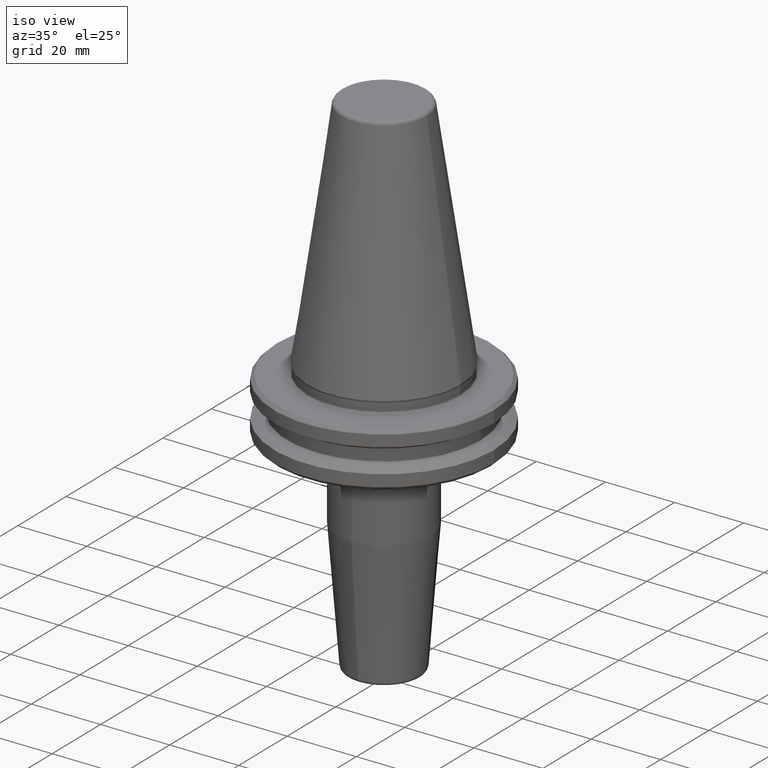
[diagram: clean part render]
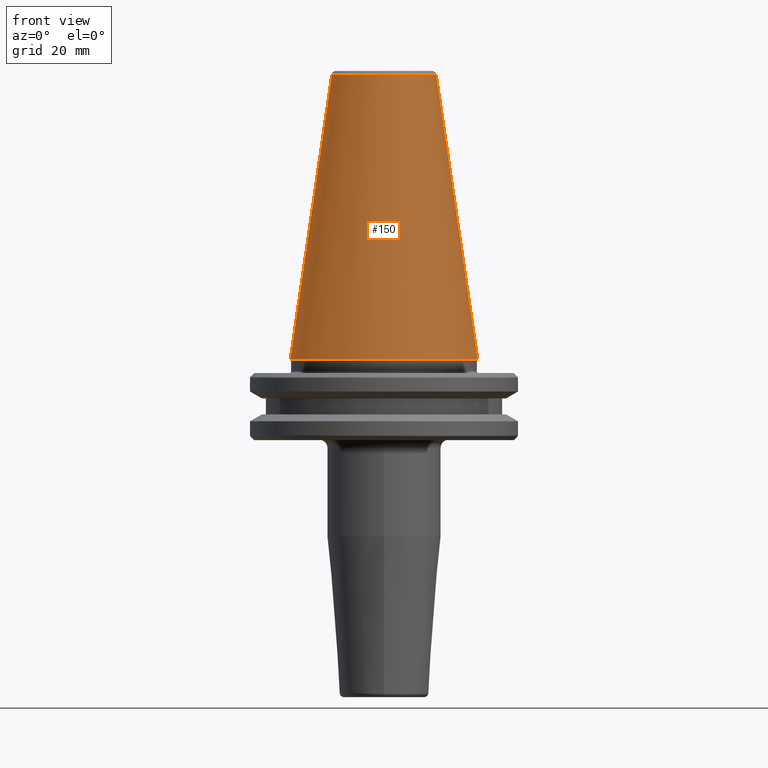
[diagram: tour spotlight — one face highlighted and labeled with its STEP entity id]
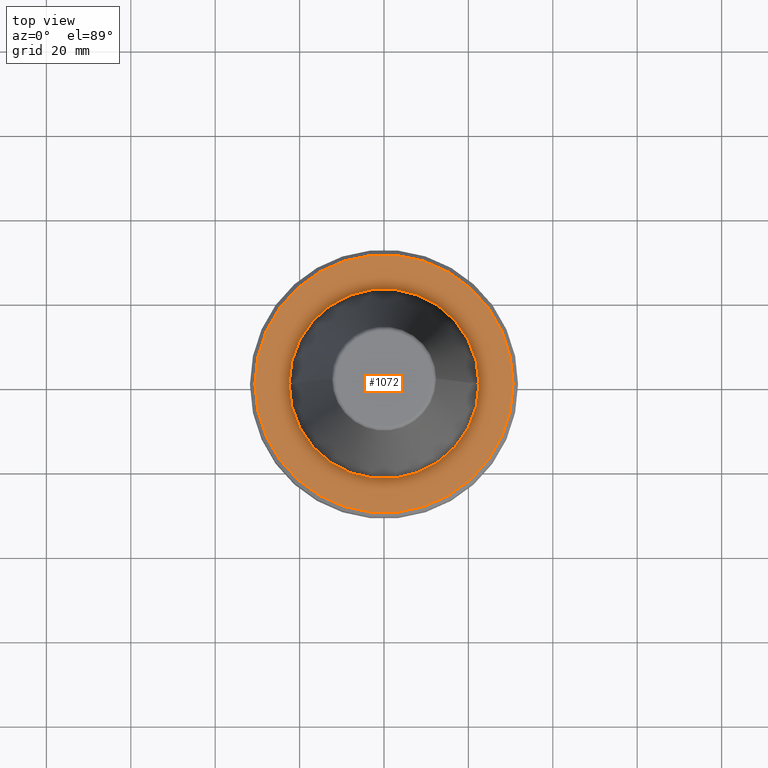
[diagram: tour spotlight — one face highlighted and labeled with its STEP entity id]
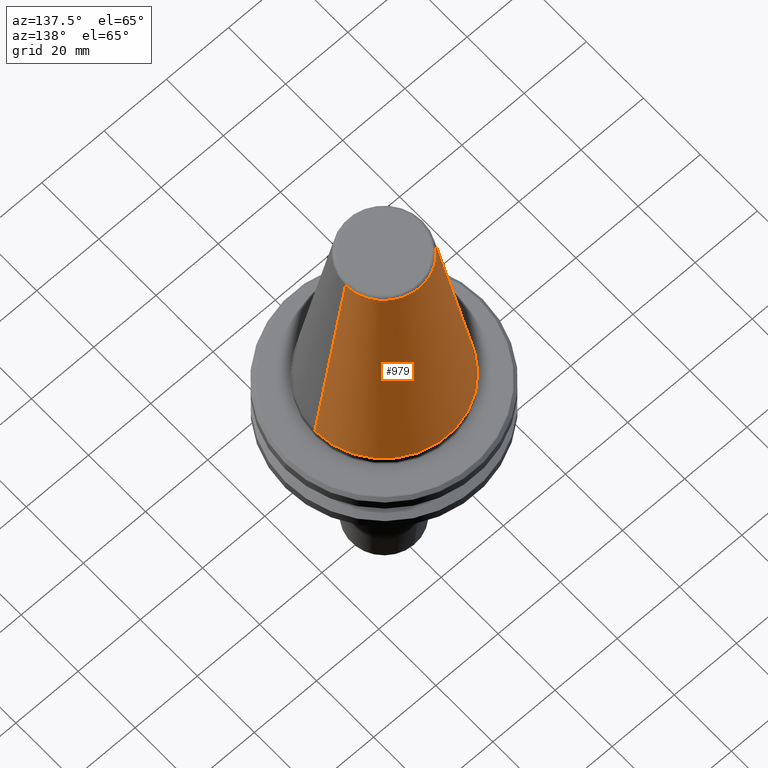
[diagram: tour spotlight — one face highlighted and labeled with its STEP entity id]
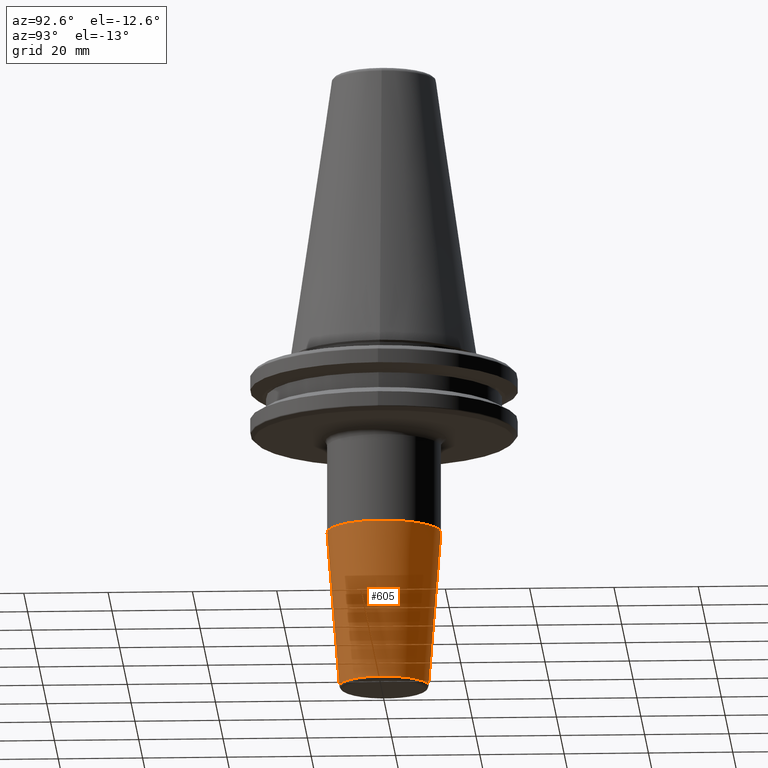
[diagram: tour spotlight — one face highlighted and labeled with its STEP entity id]
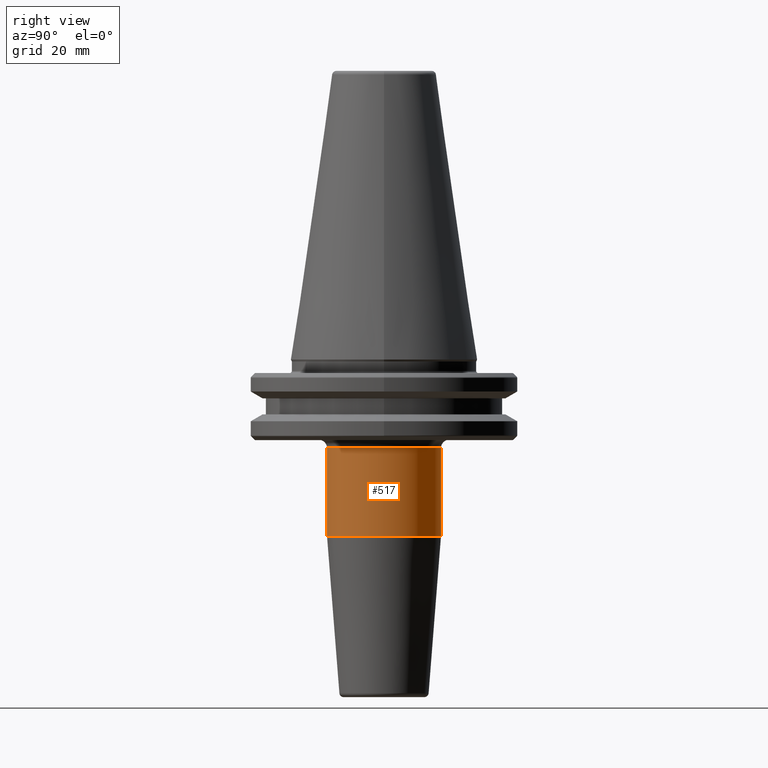
[diagram: tour spotlight — one face highlighted and labeled with its STEP entity id]
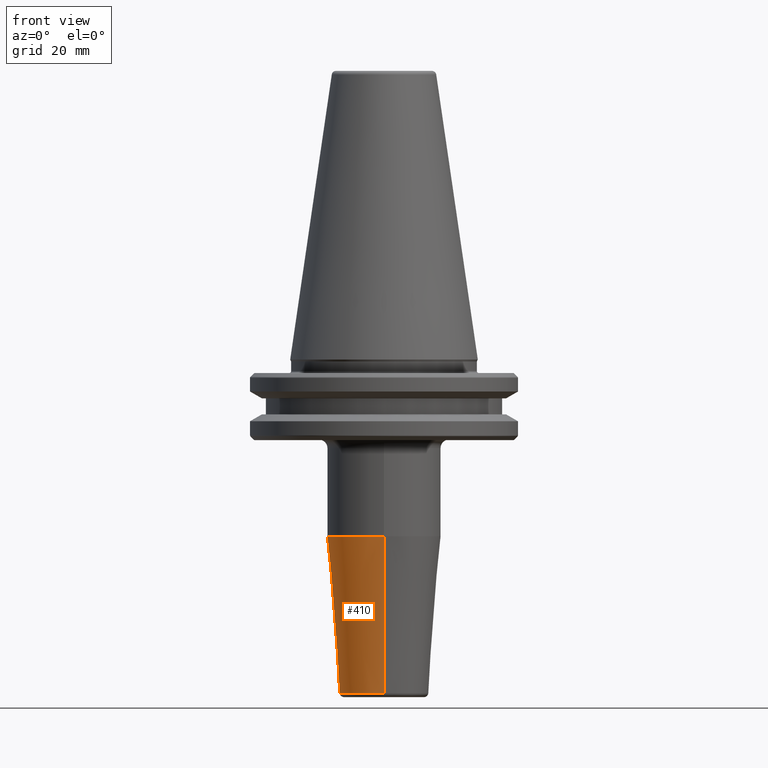
[diagram: tour spotlight — one face highlighted and labeled with its STEP entity id]
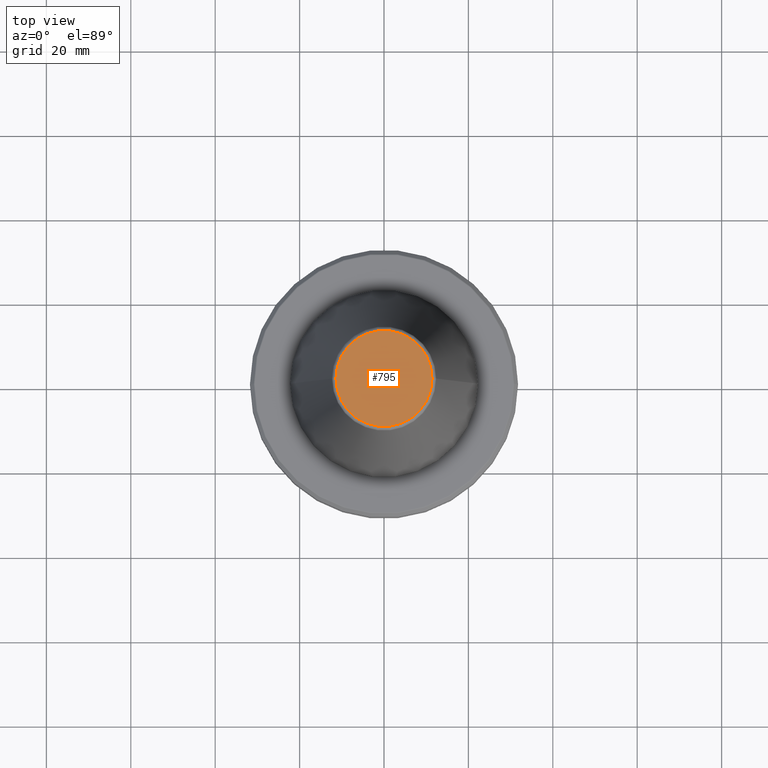
[diagram: tour spotlight — one face highlighted and labeled with its STEP entity id]
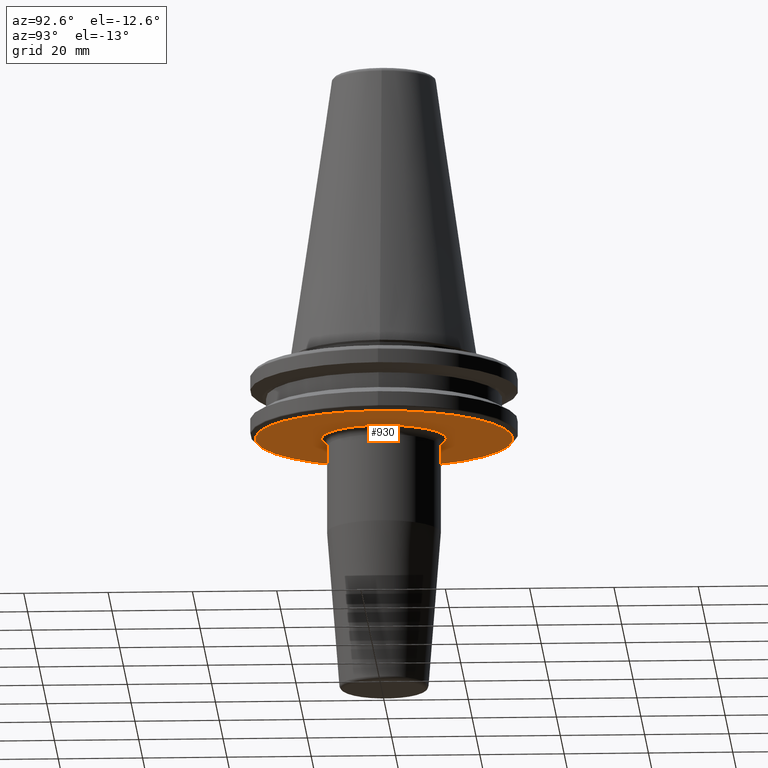
[diagram: tour spotlight — one face highlighted and labeled with its STEP entity id]
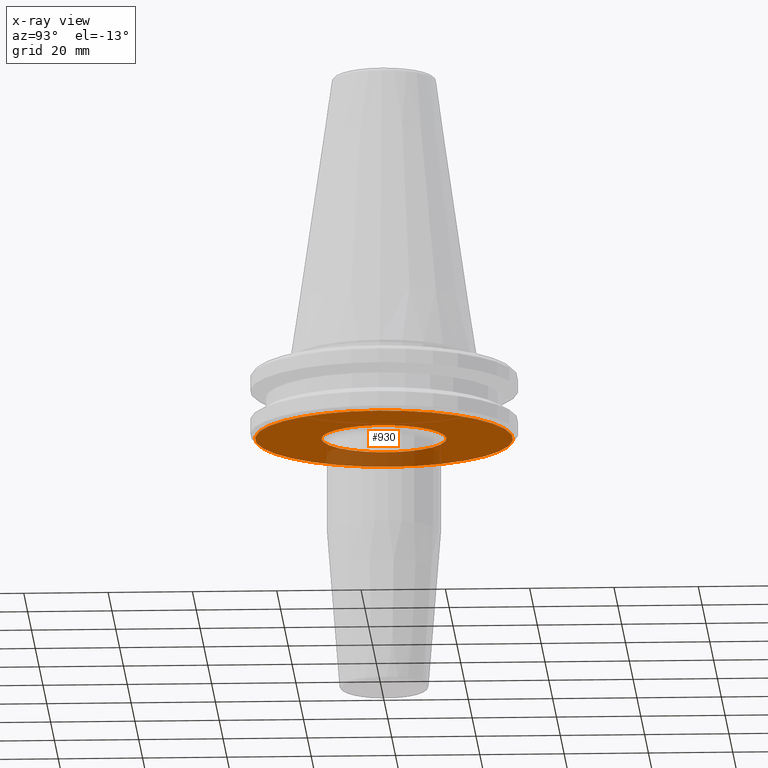
[diagram: x-ray of the same camera — body ghosted, this tour face saturated]
A machine part: a face-by-face anatomy tour. The part has 46 B-rep faces; the first image is the clean iso view, then the 8 largest visible faces are spotlighted one at a time (largest first), each with its STEP entity span.

Face 1 — front view, entity #150. In plain terms, the highlighted conical surface has half-angle 8.297 deg.
Definition (entity closure, byte-faithful):
#5 = DIRECTION ( 'NONE',  ( -0.0000000000000000000, -0.0000000000000000000, 1.000000000000000000 ) ) ;
#81 = AXIS2_PLACEMENT_3D ( 'NONE', #384, #875, #1241 ) ;
#87 = CARTESIAN_POINT ( 'NONE',  ( 12.37469537611110800, 1.515463108277802100E-015, 67.54430822726729400 ) ) ;
#141 = EDGE_CURVE ( 'NONE', #603, #1056, #298, .T. ) ;
#150 = ADVANCED_FACE ( 'NONE', ( #539 ), #750, .T. ) ;
#170 = CARTESIAN_POINT ( 'NONE',  ( -22.22500000000000500, 2.721777511104993200E-015, 0.0000000000000000000 ) ) ;
#220 = CARTESIAN_POINT ( 'NONE',  ( -12.37469537611110800, 0.0000000000000000000, 67.54430822726729400 ) ) ;
#249 = ORIENTED_EDGE ( 'NONE', *, *, #141, .F. ) ;
#268 = ORIENTED_EDGE ( 'NONE', *, *, #1227, .T. ) ;
#287 = AXIS2_PLACEMENT_3D ( 'NONE', #412, #1079, #523 ) ;
#288 = ORIENTED_EDGE ( 'NONE', *, *, #1121, .F. ) ;
#290 = DIRECTION ( 'NONE',  ( 0.1443082272673071000, 1.767266086135364600E-017, -0.9895327864921743500 ) ) ;
#298 = LINE ( 'NONE', #87, #326 ) ;
#326 = VECTOR ( 'NONE', #290, 1000.000000000000000 ) ;
#331 = AXIS2_PLACEMENT_3D ( 'NONE', #607, #5, #690 ) ;
#365 = ORIENTED_EDGE ( 'NONE', *, *, #1107, .T. ) ;
#384 = CARTESIAN_POINT ( 'NONE',  ( 0.0000000000000000000, 0.0000000000000000000, 67.54430822726729400 ) ) ;
#412 = CARTESIAN_POINT ( 'NONE',  ( 0.0000000000000000000, 0.0000000000000000000, 67.54430822726729400 ) ) ;
#503 = EDGE_LOOP ( 'NONE', ( #249, #288, #268, #365 ) ) ;
#523 = DIRECTION ( 'NONE',  ( 1.000000000000000000, 0.0000000000000000000, 0.0000000000000000000 ) ) ;
#539 = FACE_OUTER_BOUND ( 'NONE', #503, .T. ) ;
#596 = CIRCLE ( 'NONE', #331, 22.22500000000000500 ) ;
#603 = VERTEX_POINT ( 'NONE', #920 ) ;
#607 = CARTESIAN_POINT ( 'NONE',  ( 0.0000000000000000000, 0.0000000000000000000, 0.0000000000000000000 ) ) ;
#690 = DIRECTION ( 'NONE',  ( 1.000000000000000000, 0.0000000000000000000, 0.0000000000000000000 ) ) ;
#715 = VECTOR ( 'NONE', #923, 1000.000000000000000 ) ;
#734 = CARTESIAN_POINT ( 'NONE',  ( -12.37469537611110800, 0.0000000000000000000, 67.54430822726729400 ) ) ;
#750 = CONICAL_SURFACE ( 'NONE', #81, 12.37469537611110800, 0.1448138465474191100 ) ;
#805 = CIRCLE ( 'NONE', #287, 12.37469537611110800 ) ;
#852 = VERTEX_POINT ( 'NONE', #170 ) ;
#875 = DIRECTION ( 'NONE',  ( 0.0000000000000000000, 0.0000000000000000000, -1.000000000000000000 ) ) ;
#920 = CARTESIAN_POINT ( 'NONE',  ( 12.37469537611110800, 2.118620309691397700E-015, 67.54430822726729400 ) ) ;
#923 = DIRECTION ( 'NONE',  ( -0.1443082272673071000, 0.0000000000000000000, -0.9895327864921743500 ) ) ;
#968 = LINE ( 'NONE', #734, #715 ) ;
#1056 = VERTEX_POINT ( 'NONE', #1151 ) ;
#1079 = DIRECTION ( 'NONE',  ( -0.0000000000000000000, -0.0000000000000000000, 1.000000000000000000 ) ) ;
#1107 = EDGE_CURVE ( 'NONE', #852, #1056, #596, .T. ) ;
#1121 = EDGE_CURVE ( 'NONE', #1192, #603, #805, .T. ) ;
#1151 = CARTESIAN_POINT ( 'NONE',  ( 22.22500000000000500, 0.0000000000000000000, 0.0000000000000000000 ) ) ;
#1192 = VERTEX_POINT ( 'NONE', #220 ) ;
#1227 = EDGE_CURVE ( 'NONE', #1192, #852, #968, .T. ) ;
#1241 = DIRECTION ( 'NONE',  ( -1.000000000000000000, 0.0000000000000000000, 0.0000000000000000000 ) ) ;

Face 2 — top view, entity #1072. In plain terms, the highlighted planar face has unit normal (0, -0, 1).
Definition (entity closure, byte-faithful):
#3 = DIRECTION ( 'NONE',  ( -0.0000000000000000000, -0.0000000000000000000, 1.000000000000000000 ) ) ;
#23 = FACE_OUTER_BOUND ( 'NONE', #837, .T. ) ;
#47 = DIRECTION ( 'NONE',  ( -0.0000000000000000000, -0.0000000000000000000, 1.000000000000000000 ) ) ;
#52 = FACE_BOUND ( 'NONE', #1007, .T. ) ;
#96 = CARTESIAN_POINT ( 'NONE',  ( 0.0000000000000000000, 0.0000000000000000000, -3.200000000000000200 ) ) ;
#101 = CARTESIAN_POINT ( 'NONE',  ( -30.58431457505076200, 3.762817415969875600E-015, -3.199999999999994400 ) ) ;
#173 = CARTESIAN_POINT ( 'NONE',  ( 30.58431457505076200, 0.0000000000000000000, -3.199999999999994400 ) ) ;
#179 = CARTESIAN_POINT ( 'NONE',  ( 22.50000000000000000, 0.0000000000000000000, -3.199999999999996600 ) ) ;
#201 = CIRCLE ( 'NONE', #660, 30.58431457505076200 ) ;
#209 = DIRECTION ( 'NONE',  ( 1.000000000000000000, 0.0000000000000000000, 0.0000000000000000000 ) ) ;
#272 = VERTEX_POINT ( 'NONE', #173 ) ;
#364 = CIRCLE ( 'NONE', #675, 22.50000000000000000 ) ;
#369 = ORIENTED_EDGE ( 'NONE', *, *, #492, .T. ) ;
#371 = VERTEX_POINT ( 'NONE', #1196 ) ;
#379 = AXIS2_PLACEMENT_3D ( 'NONE', #96, #972, #399 ) ;
#393 = PLANE ( 'NONE',  #379 ) ;
#399 = DIRECTION ( 'NONE',  ( 1.000000000000000000, 0.0000000000000000000, 0.0000000000000000000 ) ) ;
#418 = DIRECTION ( 'NONE',  ( -0.0000000000000000000, -0.0000000000000000000, 1.000000000000000000 ) ) ;
#425 = EDGE_CURVE ( 'NONE', #272, #546, #555, .T. ) ;
#476 = CARTESIAN_POINT ( 'NONE',  ( 0.0000000000000000000, 0.0000000000000000000, -3.199999999999994400 ) ) ;
#492 = EDGE_CURVE ( 'NONE', #546, #272, #201, .T. ) ;
#498 = EDGE_CURVE ( 'NONE', #907, #371, #1193, .T. ) ;
#516 = DIRECTION ( 'NONE',  ( 1.000000000000000000, 0.0000000000000000000, 0.0000000000000000000 ) ) ;
#521 = ORIENTED_EDGE ( 'NONE', *, *, #721, .F. ) ;
#546 = VERTEX_POINT ( 'NONE', #101 ) ;
#547 = ORIENTED_EDGE ( 'NONE', *, *, #425, .T. ) ;
#555 = CIRCLE ( 'NONE', #1243, 30.58431457505076200 ) ;
#660 = AXIS2_PLACEMENT_3D ( 'NONE', #892, #418, #708 ) ;
#675 = AXIS2_PLACEMENT_3D ( 'NONE', #476, #3, #516 ) ;
#691 = CARTESIAN_POINT ( 'NONE',  ( 0.0000000000000000000, 0.0000000000000000000, -3.199999999999994400 ) ) ;
#708 = DIRECTION ( 'NONE',  ( 1.000000000000000000, 0.0000000000000000000, 0.0000000000000000000 ) ) ;
#721 = EDGE_CURVE ( 'NONE', #371, #907, #364, .T. ) ;
#732 = DIRECTION ( 'NONE',  ( 1.000000000000000000, 0.0000000000000000000, 0.0000000000000000000 ) ) ;
#794 = DIRECTION ( 'NONE',  ( -0.0000000000000000000, -0.0000000000000000000, 1.000000000000000000 ) ) ;
#837 = EDGE_LOOP ( 'NONE', ( #547, #369 ) ) ;
#892 = CARTESIAN_POINT ( 'NONE',  ( 0.0000000000000000000, 0.0000000000000000000, -3.199999999999994400 ) ) ;
#907 = VERTEX_POINT ( 'NONE', #179 ) ;
#947 = AXIS2_PLACEMENT_3D ( 'NONE', #691, #794, #209 ) ;
#972 = DIRECTION ( 'NONE',  ( 0.0000000000000000000, -0.0000000000000000000, 1.000000000000000000 ) ) ;
#1007 = EDGE_LOOP ( 'NONE', ( #1123, #521 ) ) ;
#1072 = ADVANCED_FACE ( 'NONE', ( #23, #52 ), #393, .T. ) ;
#1123 = ORIENTED_EDGE ( 'NONE', *, *, #498, .F. ) ;
#1193 = CIRCLE ( 'NONE', #947, 22.50000000000000000 ) ;
#1196 = CARTESIAN_POINT ( 'NONE',  ( -22.50000000000000000, 2.755455298081544800E-015, -3.199999999999996600 ) ) ;
#1199 = CARTESIAN_POINT ( 'NONE',  ( 0.0000000000000000000, 0.0000000000000000000, -3.199999999999994400 ) ) ;
#1243 = AXIS2_PLACEMENT_3D ( 'NONE', #1199, #47, #732 ) ;

Face 3 — auxiliary view, entity #979. In plain terms, the highlighted conical surface has half-angle 8.297 deg.
Definition (entity closure, byte-faithful):
#16 = DIRECTION ( 'NONE',  ( 1.000000000000000000, 0.0000000000000000000, 0.0000000000000000000 ) ) ;
#87 = CARTESIAN_POINT ( 'NONE',  ( 12.37469537611110800, 1.515463108277802100E-015, 67.54430822726729400 ) ) ;
#118 = FACE_OUTER_BOUND ( 'NONE', #1099, .T. ) ;
#141 = EDGE_CURVE ( 'NONE', #603, #1056, #298, .T. ) ;
#170 = CARTESIAN_POINT ( 'NONE',  ( -22.22500000000000500, 2.721777511104993200E-015, 0.0000000000000000000 ) ) ;
#220 = CARTESIAN_POINT ( 'NONE',  ( -12.37469537611110800, 0.0000000000000000000, 67.54430822726729400 ) ) ;
#239 = AXIS2_PLACEMENT_3D ( 'NONE', #1234, #939, #1046 ) ;
#252 = EDGE_CURVE ( 'NONE', #1056, #852, #1228, .T. ) ;
#290 = DIRECTION ( 'NONE',  ( 0.1443082272673071000, 1.767266086135364600E-017, -0.9895327864921743500 ) ) ;
#298 = LINE ( 'NONE', #87, #326 ) ;
#314 = EDGE_CURVE ( 'NONE', #603, #1192, #1173, .T. ) ;
#326 = VECTOR ( 'NONE', #290, 1000.000000000000000 ) ;
#389 = ORIENTED_EDGE ( 'NONE', *, *, #252, .T. ) ;
#414 = DIRECTION ( 'NONE',  ( -0.0000000000000000000, -0.0000000000000000000, 1.000000000000000000 ) ) ;
#590 = CONICAL_SURFACE ( 'NONE', #701, 12.37469537611110800, 0.1448138465474191100 ) ;
#603 = VERTEX_POINT ( 'NONE', #920 ) ;
#651 = ORIENTED_EDGE ( 'NONE', *, *, #141, .T. ) ;
#701 = AXIS2_PLACEMENT_3D ( 'NONE', #767, #962, #1240 ) ;
#715 = VECTOR ( 'NONE', #923, 1000.000000000000000 ) ;
#734 = CARTESIAN_POINT ( 'NONE',  ( -12.37469537611110800, 0.0000000000000000000, 67.54430822726729400 ) ) ;
#767 = CARTESIAN_POINT ( 'NONE',  ( 0.0000000000000000000, 0.0000000000000000000, 67.54430822726729400 ) ) ;
#789 = AXIS2_PLACEMENT_3D ( 'NONE', #888, #414, #16 ) ;
#852 = VERTEX_POINT ( 'NONE', #170 ) ;
#888 = CARTESIAN_POINT ( 'NONE',  ( 0.0000000000000000000, 0.0000000000000000000, 67.54430822726729400 ) ) ;
#920 = CARTESIAN_POINT ( 'NONE',  ( 12.37469537611110800, 2.118620309691397700E-015, 67.54430822726729400 ) ) ;
#923 = DIRECTION ( 'NONE',  ( -0.1443082272673071000, 0.0000000000000000000, -0.9895327864921743500 ) ) ;
#939 = DIRECTION ( 'NONE',  ( -0.0000000000000000000, -0.0000000000000000000, 1.000000000000000000 ) ) ;
#962 = DIRECTION ( 'NONE',  ( 0.0000000000000000000, 0.0000000000000000000, -1.000000000000000000 ) ) ;
#968 = LINE ( 'NONE', #734, #715 ) ;
#979 = ADVANCED_FACE ( 'NONE', ( #118 ), #590, .T. ) ;
#1046 = DIRECTION ( 'NONE',  ( 1.000000000000000000, 0.0000000000000000000, 0.0000000000000000000 ) ) ;
#1056 = VERTEX_POINT ( 'NONE', #1151 ) ;
#1099 = EDGE_LOOP ( 'NONE', ( #1162, #651, #389, #1232 ) ) ;
#1151 = CARTESIAN_POINT ( 'NONE',  ( 22.22500000000000500, 0.0000000000000000000, 0.0000000000000000000 ) ) ;
#1162 = ORIENTED_EDGE ( 'NONE', *, *, #314, .F. ) ;
#1173 = CIRCLE ( 'NONE', #789, 12.37469537611110800 ) ;
#1192 = VERTEX_POINT ( 'NONE', #220 ) ;
#1227 = EDGE_CURVE ( 'NONE', #1192, #852, #968, .T. ) ;
#1228 = CIRCLE ( 'NONE', #239, 22.22500000000000500 ) ;
#1232 = ORIENTED_EDGE ( 'NONE', *, *, #1227, .F. ) ;
#1234 = CARTESIAN_POINT ( 'NONE',  ( 0.0000000000000000000, 0.0000000000000000000, 0.0000000000000000000 ) ) ;
#1240 = DIRECTION ( 'NONE',  ( -1.000000000000000000, 0.0000000000000000000, 0.0000000000000000000 ) ) ;

Face 4 — auxiliary view, entity #605. In plain terms, the highlighted conical surface has half-angle 4.5 deg.
Definition (entity closure, byte-faithful):
#12 = DIRECTION ( 'NONE',  ( 0.0000000000000000000, -0.07845909572784545700, 0.9969173337331278500 ) ) ;
#31 = AXIS2_PLACEMENT_3D ( 'NONE', #461, #1018, #550 ) ;
#76 = EDGE_LOOP ( 'NONE', ( #973, #382, #1181, #1198 ) ) ;
#99 = VERTEX_POINT ( 'NONE', #522 ) ;
#112 = CARTESIAN_POINT ( 'NONE',  ( 0.0000000000000000000, -10.57252684207495400, -79.07845909572785100 ) ) ;
#142 = VECTOR ( 'NONE', #12, 1000.000000000000100 ) ;
#222 = CARTESIAN_POINT ( 'NONE',  ( 0.0000000000000000000, -2.675592333722435000E-016, -79.07845909572785100 ) ) ;
#246 = VECTOR ( 'NONE', #1128, 1000.000000000000000 ) ;
#277 = EDGE_CURVE ( 'NONE', #445, #791, #1130, .T. ) ;
#296 = EDGE_CURVE ( 'NONE', #445, #99, #722, .T. ) ;
#340 = EDGE_CURVE ( 'NONE', #99, #515, #662, .T. ) ;
#382 = ORIENTED_EDGE ( 'NONE', *, *, #277, .T. ) ;
#386 = EDGE_CURVE ( 'NONE', #791, #515, #415, .T. ) ;
#415 = CIRCLE ( 'NONE', #1093, 13.50000000000003400 ) ;
#445 = VERTEX_POINT ( 'NONE', #462 ) ;
#461 = CARTESIAN_POINT ( 'NONE',  ( 0.0000000000000000000, -2.675592333722435000E-016, -79.07845909572785100 ) ) ;
#462 = CARTESIAN_POINT ( 'NONE',  ( 0.0000000000000000000, 10.57252684207495400, -79.07845909572785100 ) ) ;
#515 = VERTEX_POINT ( 'NONE', #993 ) ;
#522 = CARTESIAN_POINT ( 'NONE',  ( 1.294761115604656700E-015, -10.57252684207495400, -79.07845909572785100 ) ) ;
#550 = DIRECTION ( 'NONE',  ( 0.0000000000000000000, -1.000000000000000000, 0.0000000000000000000 ) ) ;
#605 = ADVANCED_FACE ( 'NONE', ( #847 ), #818, .T. ) ;
#631 = DIRECTION ( 'NONE',  ( 0.0000000000000000000, 1.000000000000000000, 5.139921410301638000E-016 ) ) ;
#662 = LINE ( 'NONE', #112, #142 ) ;
#722 = CIRCLE ( 'NONE', #884, 10.57252684207495400 ) ;
#791 = VERTEX_POINT ( 'NONE', #1019 ) ;
#818 = CONICAL_SURFACE ( 'NONE', #31, 10.57252684207495400, 0.07853981633974507800 ) ;
#839 = CARTESIAN_POINT ( 'NONE',  ( 1.294761115604656500E-015, 10.57252684207495400, -79.07845909572785100 ) ) ;
#847 = FACE_OUTER_BOUND ( 'NONE', #76, .T. ) ;
#884 = AXIS2_PLACEMENT_3D ( 'NONE', #222, #1088, #1179 ) ;
#973 = ORIENTED_EDGE ( 'NONE', *, *, #296, .F. ) ;
#993 = CARTESIAN_POINT ( 'NONE',  ( 0.0000000000000000000, -13.50000000000004400, -41.88138579147598500 ) ) ;
#1018 = DIRECTION ( 'NONE',  ( 0.0000000000000000000, -2.829168385244881300E-016, 1.000000000000000000 ) ) ;
#1019 = CARTESIAN_POINT ( 'NONE',  ( 1.653273178848931000E-015, 13.50000000000002500, -41.88138579147598500 ) ) ;
#1088 = DIRECTION ( 'NONE',  ( -0.0000000000000000000, 2.829168385244881300E-016, -1.000000000000000000 ) ) ;
#1093 = AXIS2_PLACEMENT_3D ( 'NONE', #1201, #1106, #631 ) ;
#1106 = DIRECTION ( 'NONE',  ( -0.0000000000000000000, 2.829168385244881300E-016, -1.000000000000000000 ) ) ;
#1128 = DIRECTION ( 'NONE',  ( 9.608468044710139700E-018, 0.07845909572784491600, 0.9969173337331279600 ) ) ;
#1130 = LINE ( 'NONE', #839, #246 ) ;
#1179 = DIRECTION ( 'NONE',  ( 0.0000000000000000000, 1.000000000000000000, 0.0000000000000000000 ) ) ;
#1181 = ORIENTED_EDGE ( 'NONE', *, *, #386, .T. ) ;
#1198 = ORIENTED_EDGE ( 'NONE', *, *, #340, .F. ) ;
#1201 = CARTESIAN_POINT ( 'NONE',  ( 0.0000000000000000000, -1.079123761497481700E-014, -41.88138579147598500 ) ) ;

Face 5 — right view, entity #517. In plain terms, the highlighted cylindrical surface (partial cylindrical patch) has radius 13.5 mm, axis along (-0, 0, -1).
Definition (entity closure, byte-faithful):
#17 = DIRECTION ( 'NONE',  ( 0.0000000000000000000, 1.000000000000000000, 0.0000000000000000000 ) ) ;
#22 = CIRCLE ( 'NONE', #1221, 13.50000000000001800 ) ;
#51 = VECTOR ( 'NONE', #255, 1000.000000000000000 ) ;
#245 = ORIENTED_EDGE ( 'NONE', *, *, #376, .F. ) ;
#255 = DIRECTION ( 'NONE',  ( -0.0000000000000000000, 2.829168385244881300E-016, -1.000000000000000000 ) ) ;
#316 = EDGE_LOOP ( 'NONE', ( #435, #1010, #743, #245 ) ) ;
#321 = VERTEX_POINT ( 'NONE', #428 ) ;
#376 = EDGE_CURVE ( 'NONE', #321, #791, #853, .T. ) ;
#386 = EDGE_CURVE ( 'NONE', #791, #515, #415, .T. ) ;
#415 = CIRCLE ( 'NONE', #1093, 13.50000000000003400 ) ;
#417 = EDGE_CURVE ( 'NONE', #625, #515, #449, .T. ) ;
#428 = CARTESIAN_POINT ( 'NONE',  ( 0.0000000000000000000, 13.50000000000000000, -20.98284271247461100 ) ) ;
#435 = ORIENTED_EDGE ( 'NONE', *, *, #440, .T. ) ;
#440 = EDGE_CURVE ( 'NONE', #321, #625, #22, .T. ) ;
#449 = LINE ( 'NONE', #917, #51 ) ;
#510 = AXIS2_PLACEMENT_3D ( 'NONE', #688, #518, #17 ) ;
#515 = VERTEX_POINT ( 'NONE', #993 ) ;
#517 = ADVANCED_FACE ( 'NONE', ( #1164 ), #655, .T. ) ;
#518 = DIRECTION ( 'NONE',  ( -0.0000000000000000000, 2.829168385244881300E-016, -1.000000000000000000 ) ) ;
#552 = CARTESIAN_POINT ( 'NONE',  ( 0.0000000000000000000, -1.670378735265370500E-014, -20.98284271247461400 ) ) ;
#616 = VECTOR ( 'NONE', #720, 1000.000000000000000 ) ;
#625 = VERTEX_POINT ( 'NONE', #738 ) ;
#631 = DIRECTION ( 'NONE',  ( 0.0000000000000000000, 1.000000000000000000, 5.139921410301638000E-016 ) ) ;
#645 = DIRECTION ( 'NONE',  ( 0.0000000000000000000, 1.000000000000000000, 2.569960705150821900E-016 ) ) ;
#655 = CYLINDRICAL_SURFACE ( 'NONE', #510, 13.50000000000002700 ) ;
#688 = CARTESIAN_POINT ( 'NONE',  ( 0.0000000000000000000, -6.839794164568140200E-018, -80.00000000000000000 ) ) ;
#720 = DIRECTION ( 'NONE',  ( -0.0000000000000000000, 2.829168385244881300E-016, -1.000000000000000000 ) ) ;
#727 = CARTESIAN_POINT ( 'NONE',  ( 0.0000000000000000000, 13.50000000000002700, -80.00000000000000000 ) ) ;
#738 = CARTESIAN_POINT ( 'NONE',  ( 1.653273178848929600E-015, -13.50000000000003400, -20.98284271247461800 ) ) ;
#743 = ORIENTED_EDGE ( 'NONE', *, *, #386, .F. ) ;
#791 = VERTEX_POINT ( 'NONE', #1019 ) ;
#853 = LINE ( 'NONE', #727, #616 ) ;
#917 = CARTESIAN_POINT ( 'NONE',  ( 1.653273178848929800E-015, -13.50000000000002700, -80.00000000000000000 ) ) ;
#993 = CARTESIAN_POINT ( 'NONE',  ( 0.0000000000000000000, -13.50000000000004400, -41.88138579147598500 ) ) ;
#1010 = ORIENTED_EDGE ( 'NONE', *, *, #417, .T. ) ;
#1019 = CARTESIAN_POINT ( 'NONE',  ( 1.653273178848931000E-015, 13.50000000000002500, -41.88138579147598500 ) ) ;
#1020 = DIRECTION ( 'NONE',  ( -0.0000000000000000000, 2.829168385244881300E-016, -1.000000000000000000 ) ) ;
#1093 = AXIS2_PLACEMENT_3D ( 'NONE', #1201, #1106, #631 ) ;
#1106 = DIRECTION ( 'NONE',  ( -0.0000000000000000000, 2.829168385244881300E-016, -1.000000000000000000 ) ) ;
#1164 = FACE_OUTER_BOUND ( 'NONE', #316, .T. ) ;
#1201 = CARTESIAN_POINT ( 'NONE',  ( 0.0000000000000000000, -1.079123761497481700E-014, -41.88138579147598500 ) ) ;
#1221 = AXIS2_PLACEMENT_3D ( 'NONE', #552, #1020, #645 ) ;

Face 6 — front view, entity #410. In plain terms, the highlighted conical surface has half-angle 4.5 deg.
Definition (entity closure, byte-faithful):
#12 = DIRECTION ( 'NONE',  ( 0.0000000000000000000, -0.07845909572784545700, 0.9969173337331278500 ) ) ;
#34 = DIRECTION ( 'NONE',  ( 0.0000000000000000000, -1.000000000000000000, 0.0000000000000000000 ) ) ;
#79 = DIRECTION ( 'NONE',  ( -0.0000000000000000000, 2.829168385244881300E-016, -1.000000000000000000 ) ) ;
#99 = VERTEX_POINT ( 'NONE', #522 ) ;
#112 = CARTESIAN_POINT ( 'NONE',  ( 0.0000000000000000000, -10.57252684207495400, -79.07845909572785100 ) ) ;
#142 = VECTOR ( 'NONE', #12, 1000.000000000000100 ) ;
#157 = ORIENTED_EDGE ( 'NONE', *, *, #340, .T. ) ;
#172 = CARTESIAN_POINT ( 'NONE',  ( 0.0000000000000000000, -2.675592333722435000E-016, -79.07845909572785100 ) ) ;
#219 = EDGE_CURVE ( 'NONE', #515, #791, #477, .T. ) ;
#246 = VECTOR ( 'NONE', #1128, 1000.000000000000000 ) ;
#277 = EDGE_CURVE ( 'NONE', #445, #791, #1130, .T. ) ;
#340 = EDGE_CURVE ( 'NONE', #99, #515, #662, .T. ) ;
#359 = CARTESIAN_POINT ( 'NONE',  ( 0.0000000000000000000, -1.079123761497481700E-014, -41.88138579147598500 ) ) ;
#368 = DIRECTION ( 'NONE',  ( 0.0000000000000000000, 1.000000000000000000, 0.0000000000000000000 ) ) ;
#370 = DIRECTION ( 'NONE',  ( 0.0000000000000000000, 1.000000000000000000, 5.139921410301638000E-016 ) ) ;
#410 = ADVANCED_FACE ( 'NONE', ( #1085 ), #799, .T. ) ;
#445 = VERTEX_POINT ( 'NONE', #462 ) ;
#462 = CARTESIAN_POINT ( 'NONE',  ( 0.0000000000000000000, 10.57252684207495400, -79.07845909572785100 ) ) ;
#477 = CIRCLE ( 'NONE', #618, 13.50000000000003400 ) ;
#515 = VERTEX_POINT ( 'NONE', #993 ) ;
#522 = CARTESIAN_POINT ( 'NONE',  ( 1.294761115604656700E-015, -10.57252684207495400, -79.07845909572785100 ) ) ;
#541 = CARTESIAN_POINT ( 'NONE',  ( 0.0000000000000000000, -2.675592333722435000E-016, -79.07845909572785100 ) ) ;
#543 = ORIENTED_EDGE ( 'NONE', *, *, #219, .T. ) ;
#618 = AXIS2_PLACEMENT_3D ( 'NONE', #359, #79, #370 ) ;
#656 = DIRECTION ( 'NONE',  ( -0.0000000000000000000, 2.829168385244881300E-016, -1.000000000000000000 ) ) ;
#662 = LINE ( 'NONE', #112, #142 ) ;
#664 = ORIENTED_EDGE ( 'NONE', *, *, #277, .F. ) ;
#710 = AXIS2_PLACEMENT_3D ( 'NONE', #172, #656, #368 ) ;
#712 = ORIENTED_EDGE ( 'NONE', *, *, #717, .F. ) ;
#717 = EDGE_CURVE ( 'NONE', #99, #445, #1097, .T. ) ;
#791 = VERTEX_POINT ( 'NONE', #1019 ) ;
#799 = CONICAL_SURFACE ( 'NONE', #1091, 10.57252684207495400, 0.07853981633974507800 ) ;
#802 = EDGE_LOOP ( 'NONE', ( #664, #712, #157, #543 ) ) ;
#839 = CARTESIAN_POINT ( 'NONE',  ( 1.294761115604656500E-015, 10.57252684207495400, -79.07845909572785100 ) ) ;
#913 = DIRECTION ( 'NONE',  ( 0.0000000000000000000, -2.829168385244881300E-016, 1.000000000000000000 ) ) ;
#993 = CARTESIAN_POINT ( 'NONE',  ( 0.0000000000000000000, -13.50000000000004400, -41.88138579147598500 ) ) ;
#1019 = CARTESIAN_POINT ( 'NONE',  ( 1.653273178848931000E-015, 13.50000000000002500, -41.88138579147598500 ) ) ;
#1085 = FACE_OUTER_BOUND ( 'NONE', #802, .T. ) ;
#1091 = AXIS2_PLACEMENT_3D ( 'NONE', #541, #913, #34 ) ;
#1097 = CIRCLE ( 'NONE', #710, 10.57252684207495400 ) ;
#1128 = DIRECTION ( 'NONE',  ( 9.608468044710139700E-018, 0.07845909572784491600, 0.9969173337331279600 ) ) ;
#1130 = LINE ( 'NONE', #839, #246 ) ;

Face 7 — top view, entity #795. In plain terms, the highlighted planar face has unit normal (0, -0, 1).
Definition (entity closure, byte-faithful):
#2 = FACE_OUTER_BOUND ( 'NONE', #1187, .T. ) ;
#72 = CARTESIAN_POINT ( 'NONE',  ( 0.0000000000000000000, 0.0000000000000000000, 68.40000000000000600 ) ) ;
#115 = DIRECTION ( 'NONE',  ( 1.000000000000000000, 0.0000000000000000000, 0.0000000000000000000 ) ) ;
#121 = DIRECTION ( 'NONE',  ( -0.0000000000000000000, -0.0000000000000000000, 1.000000000000000000 ) ) ;
#166 = VERTEX_POINT ( 'NONE', #294 ) ;
#242 = CIRCLE ( 'NONE', #433, 11.38516258961893100 ) ;
#294 = CARTESIAN_POINT ( 'NONE',  ( 11.38516258961893100, 0.0000000000000000000, 68.40000000000000600 ) ) ;
#360 = PLANE ( 'NONE',  #409 ) ;
#409 = AXIS2_PLACEMENT_3D ( 'NONE', #1032, #470, #1124 ) ;
#433 = AXIS2_PLACEMENT_3D ( 'NONE', #987, #121, #115 ) ;
#470 = DIRECTION ( 'NONE',  ( 0.0000000000000000000, -0.0000000000000000000, 1.000000000000000000 ) ) ;
#537 = EDGE_CURVE ( 'NONE', #1246, #166, #242, .T. ) ;
#627 = CIRCLE ( 'NONE', #725, 11.38516258961893100 ) ;
#632 = ORIENTED_EDGE ( 'NONE', *, *, #537, .T. ) ;
#707 = EDGE_CURVE ( 'NONE', #166, #1246, #627, .T. ) ;
#725 = AXIS2_PLACEMENT_3D ( 'NONE', #72, #1131, #1040 ) ;
#792 = ORIENTED_EDGE ( 'NONE', *, *, #707, .T. ) ;
#795 = ADVANCED_FACE ( 'NONE', ( #2 ), #360, .T. ) ;
#987 = CARTESIAN_POINT ( 'NONE',  ( 0.0000000000000000000, 0.0000000000000000000, 68.40000000000000600 ) ) ;
#1032 = CARTESIAN_POINT ( 'NONE',  ( 0.0000000000000000000, -8.337524199435086500E-014, 68.39999999999999100 ) ) ;
#1040 = DIRECTION ( 'NONE',  ( 1.000000000000000000, 0.0000000000000000000, 0.0000000000000000000 ) ) ;
#1124 = DIRECTION ( 'NONE',  ( 1.000000000000000000, 0.0000000000000000000, 0.0000000000000000000 ) ) ;
#1131 = DIRECTION ( 'NONE',  ( -0.0000000000000000000, -0.0000000000000000000, 1.000000000000000000 ) ) ;
#1187 = EDGE_LOOP ( 'NONE', ( #792, #632 ) ) ;
#1213 = CARTESIAN_POINT ( 'NONE',  ( -11.38516258961893100, 1.454871700296352000E-015, 68.40000000000000600 ) ) ;
#1246 = VERTEX_POINT ( 'NONE', #1213 ) ;

Face 8 — auxiliary view, entity #930. An x-ray twin of the same camera follows (body ghosted, this face saturated) — the face is partly hidden behind the body. In plain terms, the highlighted planar face has unit normal (0, 0, -1).
Definition (entity closure, byte-faithful):
#25 = DIRECTION ( 'NONE',  ( 0.0000000000000000000, 0.0000000000000000000, -1.000000000000000000 ) ) ;
#84 = PLANE ( 'NONE',  #986 ) ;
#131 = ORIENTED_EDGE ( 'NONE', *, *, #519, .F. ) ;
#155 = ORIENTED_EDGE ( 'NONE', *, *, #358, .F. ) ;
#165 = CARTESIAN_POINT ( 'NONE',  ( 1.815604372569386400E-015, -14.82553478956939400, -19.10000000000000500 ) ) ;
#183 = CARTESIAN_POINT ( 'NONE',  ( 0.0000000000000000000, 2.166680460328873200E-015, -19.10000000000000500 ) ) ;
#226 = CARTESIAN_POINT ( 'NONE',  ( 0.0000000000000000000, 14.82553478956935000, -19.10000000000000500 ) ) ;
#254 = VERTEX_POINT ( 'NONE', #165 ) ;
#285 = EDGE_CURVE ( 'NONE', #1027, #1157, #1230, .T. ) ;
#309 = VERTEX_POINT ( 'NONE', #226 ) ;
#317 = DIRECTION ( 'NONE',  ( 1.000000000000000000, 0.0000000000000000000, 0.0000000000000000000 ) ) ;
#324 = DIRECTION ( 'NONE',  ( 1.000000000000000000, 0.0000000000000000000, 0.0000000000000000000 ) ) ;
#358 = EDGE_CURVE ( 'NONE', #1157, #1027, #639, .T. ) ;
#381 = FACE_BOUND ( 'NONE', #615, .T. ) ;
#436 = CARTESIAN_POINT ( 'NONE',  ( 0.0000000000000000000, -1.734723475976807100E-014, -19.10000000000000500 ) ) ;
#447 = DIRECTION ( 'NONE',  ( -0.0000000000000000000, -0.0000000000000000000, 1.000000000000000000 ) ) ;
#494 = DIRECTION ( 'NONE',  ( 0.0000000000000000000, 0.0000000000000000000, -1.000000000000000000 ) ) ;
#519 = EDGE_CURVE ( 'NONE', #254, #309, #912, .T. ) ;
#530 = DIRECTION ( 'NONE',  ( -0.0000000000000000000, -0.0000000000000000000, 1.000000000000000000 ) ) ;
#615 = EDGE_LOOP ( 'NONE', ( #654, #131 ) ) ;
#639 = CIRCLE ( 'NONE', #1108, 30.58431457505076500 ) ;
#640 = FACE_OUTER_BOUND ( 'NONE', #1175, .T. ) ;
#653 = EDGE_CURVE ( 'NONE', #309, #254, #719, .T. ) ;
#654 = ORIENTED_EDGE ( 'NONE', *, *, #653, .F. ) ;
#661 = CARTESIAN_POINT ( 'NONE',  ( 0.0000000000000000000, 0.0000000000000000000, -19.10000000000000500 ) ) ;
#719 = CIRCLE ( 'NONE', #1117, 14.82553478956937300 ) ;
#724 = ORIENTED_EDGE ( 'NONE', *, *, #285, .F. ) ;
#788 = DIRECTION ( 'NONE',  ( 1.000000000000000000, 0.0000000000000000000, 0.0000000000000000000 ) ) ;
#800 = AXIS2_PLACEMENT_3D ( 'NONE', #661, #530, #317 ) ;
#813 = DIRECTION ( 'NONE',  ( 1.000000000000000000, 0.0000000000000000000, 0.0000000000000000000 ) ) ;
#861 = CARTESIAN_POINT ( 'NONE',  ( -30.58431457505076500, 3.762817415969875600E-015, -19.10000000000000500 ) ) ;
#882 = CARTESIAN_POINT ( 'NONE',  ( 0.0000000000000000000, -1.734723475976807100E-014, -19.10000000000000500 ) ) ;
#895 = AXIS2_PLACEMENT_3D ( 'NONE', #882, #980, #788 ) ;
#912 = CIRCLE ( 'NONE', #895, 14.82553478956937300 ) ;
#930 = ADVANCED_FACE ( 'NONE', ( #381, #640 ), #84, .T. ) ;
#980 = DIRECTION ( 'NONE',  ( 0.0000000000000000000, 0.0000000000000000000, -1.000000000000000000 ) ) ;
#986 = AXIS2_PLACEMENT_3D ( 'NONE', #183, #494, #1144 ) ;
#1027 = VERTEX_POINT ( 'NONE', #861 ) ;
#1101 = CARTESIAN_POINT ( 'NONE',  ( 0.0000000000000000000, 0.0000000000000000000, -19.10000000000000500 ) ) ;
#1108 = AXIS2_PLACEMENT_3D ( 'NONE', #1101, #447, #813 ) ;
#1117 = AXIS2_PLACEMENT_3D ( 'NONE', #436, #25, #324 ) ;
#1144 = DIRECTION ( 'NONE',  ( -1.000000000000000000, 0.0000000000000000000, -0.0000000000000000000 ) ) ;
#1157 = VERTEX_POINT ( 'NONE', #1165 ) ;
#1165 = CARTESIAN_POINT ( 'NONE',  ( 30.58431457505076500, 0.0000000000000000000, -19.10000000000000500 ) ) ;
#1175 = EDGE_LOOP ( 'NONE', ( #155, #724 ) ) ;
#1230 = CIRCLE ( 'NONE', #800, 30.58431457505076500 ) ;